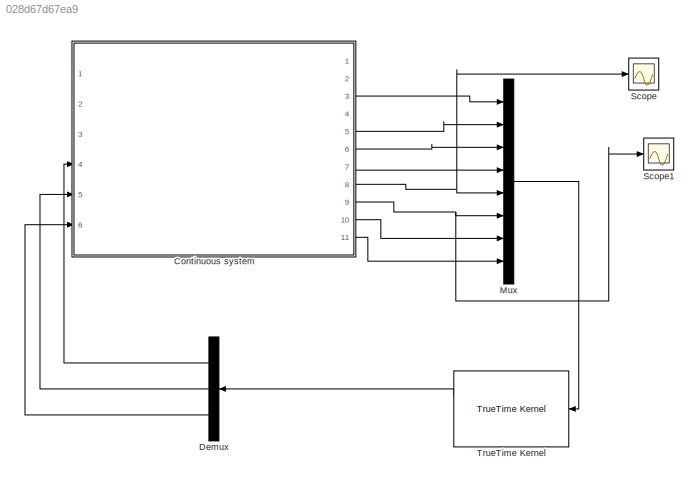
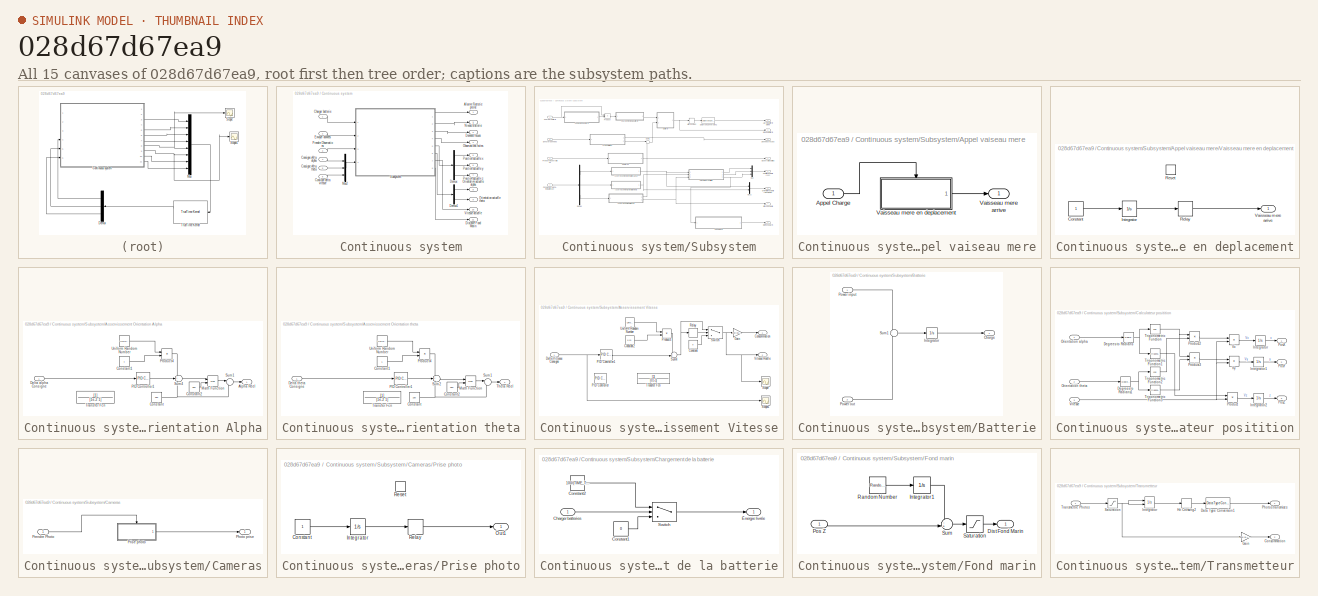
[diagram: thumbnail index - all 15 canvases of the model, root first then tree order]
MODEL slx_028d67d67ea9
KIND model
CONFIG AbsTol = auto
CONFIG EnableMultiTasking = off
CONFIG FixedStep = auto
CONFIG MaxStep = auto
CONFIG MinStep = auto
CONFIG RelTol = 1e-3
CONFIG SampleTimeConstraint = Unconstrained
CONFIG SolverName = VariableStepAuto
CONFIG StartTime = 0.0
CONFIG StopTime = 1
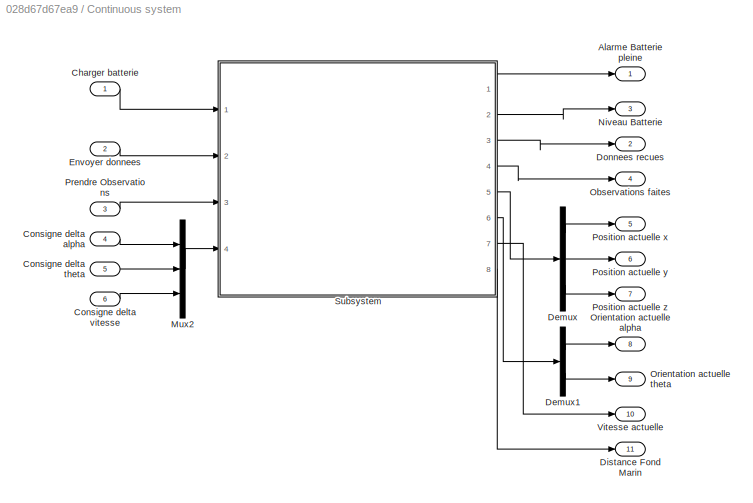
BLOCK [SubSystem] Continuous system
  Ports = [6, 11]
  RequestExecContextInheritance = off
BLOCK [Outport] Continuous system/Alarme Batterie pleine
  VectorParamsAs1DForOutWhenUnconnected = off
BLOCK [Inport] Continuous system/Charger batterie
BLOCK [Inport] Continuous system/Consigne delta alpha
  Port = 4
BLOCK [Inport] Continuous system/Consigne delta theta
  Port = 5
BLOCK [Inport] Continuous system/Consigne delta vitesse
  Port = 6
BLOCK [Demux] Continuous system/Demux
  Outputs = 3
  Ports = [1, 3]
BLOCK [Demux] Continuous system/Demux1
  Outputs = 2
  Ports = [1, 2]
BLOCK [Outport] Continuous system/Distance Fond Marin
  Port = 11
  VectorParamsAs1DForOutWhenUnconnected = off
BLOCK [Outport] Continuous system/Donnees recues
  Port = 2
  VectorParamsAs1DForOutWhenUnconnected = off
BLOCK [Inport] Continuous system/Envoyer donnees
  Port = 2
BLOCK [Mux] Continuous system/Mux2
  DisplayOption = bar
  Inputs = 3
  Ports = [3, 1]
BLOCK [Outport] Continuous system/Niveau Batterie
  Port = 3
  VectorParamsAs1DForOutWhenUnconnected = off
BLOCK [Outport] Continuous system/Observations faites
  Port = 4
  VectorParamsAs1DForOutWhenUnconnected = off
BLOCK [Outport] Continuous system/Orientation actuelle alpha
  Port = 8
  VectorParamsAs1DForOutWhenUnconnected = off
BLOCK [Outport] Continuous system/Orientation actuelle theta
  Port = 9
  VectorParamsAs1DForOutWhenUnconnected = off
BLOCK [Outport] Continuous system/Position actuelle x
  Port = 5
  VectorParamsAs1DForOutWhenUnconnected = off
BLOCK [Outport] Continuous system/Position actuelle y
  Port = 6
  VectorParamsAs1DForOutWhenUnconnected = off
BLOCK [Outport] Continuous system/Position actuelle z
  Port = 7
  VectorParamsAs1DForOutWhenUnconnected = off
BLOCK [Inport] Continuous system/Prendre Observations
  Port = 3
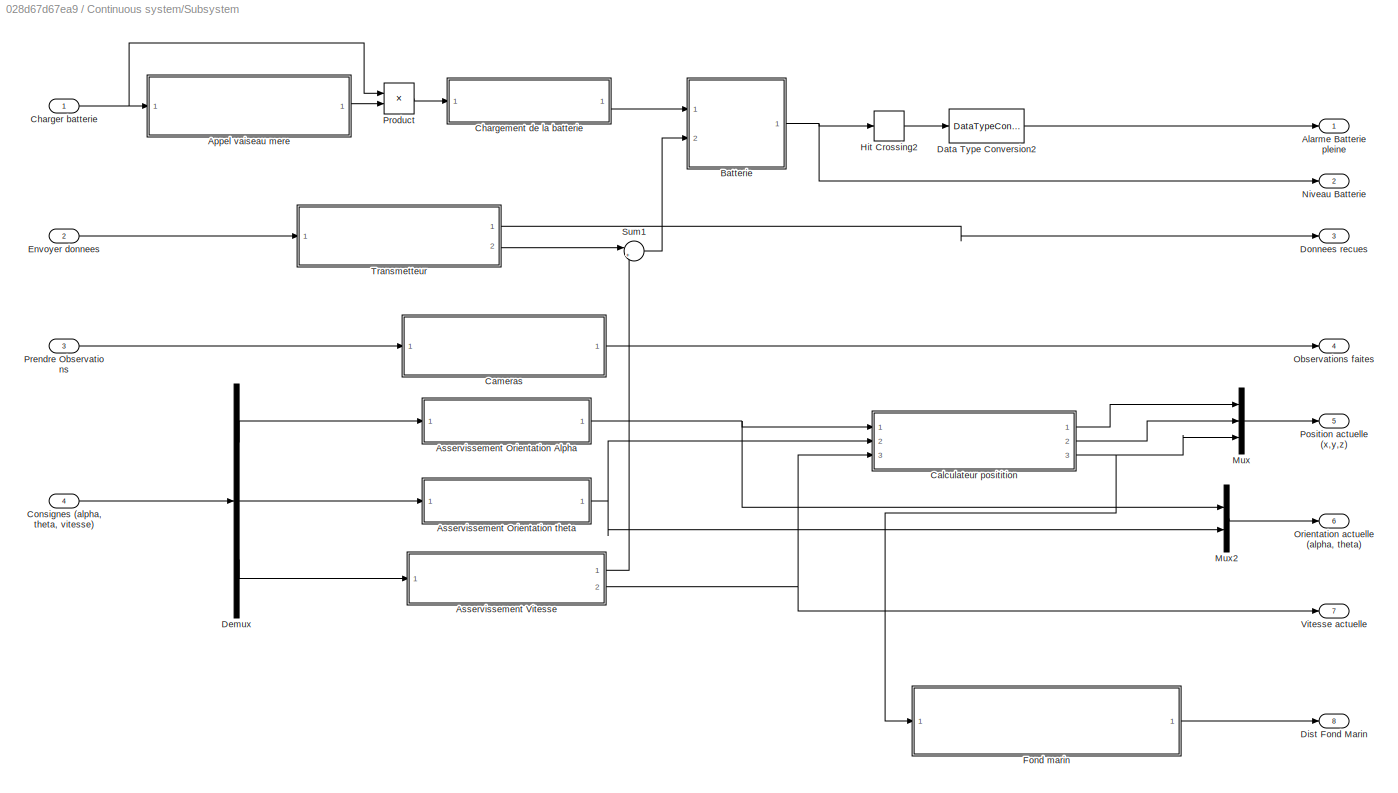
BLOCK [SubSystem] Continuous system/Subsystem
  Ports = [4, 8]
  RequestExecContextInheritance = off
BLOCK [Outport] Continuous system/Subsystem/Alarme Batterie pleine
  VectorParamsAs1DForOutWhenUnconnected = off
BLOCK [SubSystem] Continuous system/Subsystem/Appel vaiseau mere
  Ports = [1, 1]
  RequestExecContextInheritance = off
BLOCK [Inport] Continuous system/Subsystem/Appel vaiseau mere/Appel Charge
BLOCK [Outport] Continuous system/Subsystem/Appel vaiseau mere/Vaisseau mere arrive
  VectorParamsAs1DForOutWhenUnconnected = off
BLOCK [SubSystem] Continuous system/Subsystem/Appel vaiseau mere/Vaisseau mere en deplacement
  Ports = [0, 1, 0, 0, 0, 0, 0, 0, 1]
  RequestExecContextInheritance = off
  TreatAsAtomicUnit = on
BLOCK [Constant] Continuous system/Subsystem/Appel vaiseau mere/Vaisseau mere en deplacement/Constant
BLOCK [Integrator] Continuous system/Subsystem/Appel vaiseau mere/Vaisseau mere en deplacement/Integrator
  Ports = [1, 1]
BLOCK [Relay] Continuous system/Subsystem/Appel vaiseau mere/Vaisseau mere en deplacement/Relay
  OffSwitchValue = 0
  OnSwitchValue = TIME_APPEL_CHARGE_S/SIMU_ACCEL
BLOCK [ResetPort] Continuous system/Subsystem/Appel vaiseau mere/Vaisseau mere en deplacement/Reset
  DisableCoverage = on
BLOCK [Outport] Continuous system/Subsystem/Appel vaiseau mere/Vaisseau mere en deplacement/Vaisseau mere arrive
  VectorParamsAs1DForOutWhenUnconnected = off
BLOCK [SubSystem] Continuous system/Subsystem/Asservissement Orientation Alpha
  Ports = [1, 1]
  RequestExecContextInheritance = off
BLOCK [Outport] Continuous system/Subsystem/Asservissement Orientation Alpha/Alpha Réel
  VectorParamsAs1DForOutWhenUnconnected = off
BLOCK [Constant] Continuous system/Subsystem/Asservissement Orientation Alpha/Constant
  Value = 180
BLOCK [Constant] Continuous system/Subsystem/Asservissement Orientation Alpha/Constant1
BLOCK [Constant] Continuous system/Subsystem/Asservissement Orientation Alpha/Constant2
  Value = 360
BLOCK [Inport] Continuous system/Subsystem/Asservissement Orientation Alpha/Delta alpha Consigne
BLOCK [Math] Continuous system/Subsystem/Asservissement Orientation Alpha/Math Function
  Operator = mod
  Ports = [2, 1]
BLOCK [Reference] Continuous system/Subsystem/Asservissement Orientation Alpha/PID Controller1  REF=pid_lib/PID Controller
  Ports = [1, 1]
  SourceBlock = pid_lib/PID Controller
  SourceProductBaseCode = SL
  SourceType = PID 1dof
BLOCK [Product] Continuous system/Subsystem/Asservissement Orientation Alpha/Product4
  Ports = [2, 1]
BLOCK [Sum] Continuous system/Subsystem/Asservissement Orientation Alpha/Sum1
  Inputs = |+-
  Ports = [2, 1]
BLOCK [Sum] Continuous system/Subsystem/Asservissement Orientation Alpha/Sum4
  Inputs = +++
  Ports = [3, 1]
BLOCK [TransferFcn] Continuous system/Subsystem/Asservissement Orientation Alpha/Transfer Fcn
  Commented = on
  Denominator = [1e-2 1]
BLOCK [UniformRandomNumber] Continuous system/Subsystem/Asservissement Orientation Alpha/Uniform Random Number
  SampleTime = 0.1
BLOCK [SubSystem] Continuous system/Subsystem/Asservissement Orientation theta
  Ports = [1, 1]
  RequestExecContextInheritance = off
BLOCK [Constant] Continuous system/Subsystem/Asservissement Orientation theta/Constant
  Value = 180
BLOCK [Constant] Continuous system/Subsystem/Asservissement Orientation theta/Constant1
BLOCK [Constant] Continuous system/Subsystem/Asservissement Orientation theta/Constant2
  Value = 360
BLOCK [Inport] Continuous system/Subsystem/Asservissement Orientation theta/Delta theta Consigne
BLOCK [Math] Continuous system/Subsystem/Asservissement Orientation theta/Math Function
  Operator = mod
  Ports = [2, 1]
BLOCK [Reference] Continuous system/Subsystem/Asservissement Orientation theta/PID Controller1  REF=pid_lib/PID Controller
  Ports = [1, 1]
  SourceBlock = pid_lib/PID Controller
  SourceProductBaseCode = SL
  SourceType = PID 1dof
BLOCK [Product] Continuous system/Subsystem/Asservissement Orientation theta/Product4
  Ports = [2, 1]
BLOCK [Sum] Continuous system/Subsystem/Asservissement Orientation theta/Sum1
  Inputs = |+-
  Ports = [2, 1]
BLOCK [Sum] Continuous system/Subsystem/Asservissement Orientation theta/Sum2
  Inputs = +++
  Ports = [3, 1]
BLOCK [Outport] Continuous system/Subsystem/Asservissement Orientation theta/Theta Réel
  VectorParamsAs1DForOutWhenUnconnected = off
BLOCK [TransferFcn] Continuous system/Subsystem/Asservissement Orientation theta/Transfer Fcn
  Commented = on
  Denominator = [1e-2 1]
BLOCK [UniformRandomNumber] Continuous system/Subsystem/Asservissement Orientation theta/Uniform Random Number
  SampleTime = 0.1
BLOCK [SubSystem] Continuous system/Subsystem/Asservissement Vitesse
  Ports = [1, 2]
  RequestExecContextInheritance = off
BLOCK [Outport] Continuous system/Subsystem/Asservissement Vitesse/Consommation
  VectorParamsAs1DForOutWhenUnconnected = off
BLOCK [Constant] Continuous system/Subsystem/Asservissement Vitesse/Constant
  Value = 0
BLOCK [Constant] Continuous system/Subsystem/Asservissement Vitesse/Constant2
  Value = 0.01
BLOCK [Inport] Continuous system/Subsystem/Asservissement Vitesse/Delta Vittesse Consigne
BLOCK [Gain] Continuous system/Subsystem/Asservissement Vitesse/Gain
  Gain = 100/(BAT_AUTONOMY_S*VITESSE_MAX_MS)
BLOCK [Reference] Continuous system/Subsystem/Asservissement Vitesse/PID Controller  REF=pid_lib/PID Controller
  Commented = on
  Ports = [1, 1]
  SourceBlock = pid_lib/PID Controller
  SourceProductBaseCode = SL
  SourceType = PID 1dof
BLOCK [Reference] Continuous system/Subsystem/Asservissement Vitesse/PID Controller1  REF=pid_lib/PID Controller
  Ports = [1, 1]
  SourceBlock = pid_lib/PID Controller
  SourceProductBaseCode = SL
  SourceType = PID 1dof
BLOCK [Product] Continuous system/Subsystem/Asservissement Vitesse/Product4
  Ports = [2, 1]
BLOCK [Relay] Continuous system/Subsystem/Asservissement Vitesse/Relay
  OffSwitchValue = 0.01
  OnSwitchValue = 0.011
BLOCK [Scope] Continuous system/Subsystem/Asservissement Vitesse/Scope
  Floating = off
  NumInputPorts = 1
  Ports = [1]
  ScopeSpecificationString = Simulink.scopes.TimeScopeBlockCfg('CurrentConfiguration', extmgr.ConfigurationSet(extmgr.Configuration('Core','General UI',true),extmgr.Configuration('Core','Source UI',true),extmgr.Configuration('Sources','WiredSimulink',true,'DataLoggingVariableName','ScopeData1'),extmgr.Configuration('Visuals','Time Domain',true,'SerializedDisplays',{struct('MinYLimReal','-0.62689','MaxYLimReal','5.64199','YLab...<+1365ch>
BLOCK [Scope] Continuous system/Subsystem/Asservissement Vitesse/Scope1
  Floating = off
  NumInputPorts = 1
  Ports = [1]
  ScopeSpecificationString = Simulink.scopes.TimeScopeBlockCfg('CurrentConfiguration', extmgr.ConfigurationSet(extmgr.Configuration('Core','General UI',true),extmgr.Configuration('Core','Source UI',true),extmgr.Configuration('Sources','WiredSimulink',true,'DataLoggingVariableName','ScopeData2'),extmgr.Configuration('Visuals','Time Domain',true,'SerializedDisplays',{struct('MinYLimReal','-6.24875','MaxYLimReal','6.24986','YLab...<+1410ch>
BLOCK [Sum] Continuous system/Subsystem/Asservissement Vitesse/Sum4
  Inputs = ++|
  Ports = [2, 1]
BLOCK [Switch] Continuous system/Subsystem/Asservissement Vitesse/Switch
  Criteria = u2 > Threshold
  InputSameDT = off
  NameLocation = top
  SaturateOnIntegerOverflow = off
BLOCK [TransferFcn] Continuous system/Subsystem/Asservissement Vitesse/Transfer Fcn
  Commented = on
  Denominator = [0.5 1]
BLOCK [UniformRandomNumber] Continuous system/Subsystem/Asservissement Vitesse/Uniform Random Number
  SampleTime = 0.1
BLOCK [Outport] Continuous system/Subsystem/Asservissement Vitesse/Vitesse Réelle
  Port = 2
  VectorParamsAs1DForOutWhenUnconnected = off
BLOCK [SubSystem] Continuous system/Subsystem/Batterie
  Ports = [2, 1]
  RequestExecContextInheritance = off
BLOCK [Outport] Continuous system/Subsystem/Batterie/Charge
  VectorParamsAs1DForOutWhenUnconnected = off
BLOCK [Integrator] Continuous system/Subsystem/Batterie/Integrator
  InitialCondition = INIT_NIV_BAT
  LimitOutput = on
  LowerSaturationLimit = 0
  Ports = [1, 1]
  UpperSaturationLimit = 100
BLOCK [Inport] Continuous system/Subsystem/Batterie/Power input
BLOCK [Inport] Continuous system/Subsystem/Batterie/Power out
  Port = 2
BLOCK [Sum] Continuous system/Subsystem/Batterie/Sum1
  Inputs = +-
  Ports = [2, 1]
BLOCK [SubSystem] Continuous system/Subsystem/Calculateur positition
  Ports = [3, 3]
  RequestExecContextInheritance = off
BLOCK [Reference] Continuous system/Subsystem/Calculateur positition/Degrees to Radians  REF=simulink_extras/Transformations/Degrees to
Radians
  NameLocation = top
  Ports = [1, 1]
  SourceBlock = simulink_extras/Transformations/Degrees to\nRadians
  SourceProductBaseCode = SL
  SourceType = DegreesToRadians
BLOCK [Reference] Continuous system/Subsystem/Calculateur positition/Degrees to Radians1  REF=simulink_extras/Transformations/Degrees to
Radians
  NameLocation = top
  Ports = [1, 1]
  SourceBlock = simulink_extras/Transformations/Degrees to\nRadians
  SourceProductBaseCode = SL
  SourceType = DegreesToRadians
BLOCK [Integrator] Continuous system/Subsystem/Calculateur positition/Integrator
  Ports = [1, 1]
BLOCK [Integrator] Continuous system/Subsystem/Calculateur positition/Integrator1
  Ports = [1, 1]
BLOCK [Integrator] Continuous system/Subsystem/Calculateur positition/Integrator2
  LimitOutput = on
  Ports = [1, 1]
  UpperSaturationLimit = 0
BLOCK [Inport] Continuous system/Subsystem/Calculateur positition/Orientation alpha
BLOCK [Inport] Continuous system/Subsystem/Calculateur positition/Orientation theta
  Port = 2
BLOCK [Outport] Continuous system/Subsystem/Calculateur positition/PosX
  VectorParamsAs1DForOutWhenUnconnected = off
BLOCK [Outport] Continuous system/Subsystem/Calculateur positition/PosY
  Port = 2
  VectorParamsAs1DForOutWhenUnconnected = off
BLOCK [Outport] Continuous system/Subsystem/Calculateur positition/PosZ
  Port = 3
  VectorParamsAs1DForOutWhenUnconnected = off
BLOCK [Product] Continuous system/Subsystem/Calculateur positition/Product
  Ports = [2, 1]
BLOCK [Product] Continuous system/Subsystem/Calculateur positition/Product2
  Ports = [2, 1]
BLOCK [Product] Continuous system/Subsystem/Calculateur positition/Product3
  Ports = [2, 1]
BLOCK [Trigonometry] Continuous system/Subsystem/Calculateur positition/Trigonometric Function
  Operator = cos
  Ports = [1, 1]
BLOCK [Trigonometry] Continuous system/Subsystem/Calculateur positition/Trigonometric Function1
  Ports = [1, 1]
BLOCK [Trigonometry] Continuous system/Subsystem/Calculateur positition/Trigonometric Function2
  Operator = cos
  Ports = [1, 1]
BLOCK [Trigonometry] Continuous system/Subsystem/Calculateur positition/Trigonometric Function3
  Ports = [1, 1]
BLOCK [Inport] Continuous system/Subsystem/Calculateur positition/Vitesse
  Port = 3
BLOCK [Product] Continuous system/Subsystem/Calculateur positition/Vx
  Ports = [2, 1]
BLOCK [Product] Continuous system/Subsystem/Calculateur positition/Vy
  Ports = [2, 1]
BLOCK [SubSystem] Continuous system/Subsystem/Cameras
  Ports = [1, 1]
  RequestExecContextInheritance = off
BLOCK [Outport] Continuous system/Subsystem/Cameras/Photo prise
  VectorParamsAs1DForOutWhenUnconnected = off
BLOCK [Inport] Continuous system/Subsystem/Cameras/Prendre Photo
BLOCK [SubSystem] Continuous system/Subsystem/Cameras/Prise photo
  Ports = [0, 1, 0, 0, 0, 0, 0, 0, 1]
  RequestExecContextInheritance = off
  TreatAsAtomicUnit = on
BLOCK [Constant] Continuous system/Subsystem/Cameras/Prise photo/Constant
BLOCK [Integrator] Continuous system/Subsystem/Cameras/Prise photo/Integrator
  Ports = [1, 1]
BLOCK [Outport] Continuous system/Subsystem/Cameras/Prise photo/Out1
  VectorParamsAs1DForOutWhenUnconnected = off
BLOCK [Relay] Continuous system/Subsystem/Cameras/Prise photo/Relay
  OffSwitchValue = 0
  OnSwitchValue = TIME_PHOTO_S
BLOCK [ResetPort] Continuous system/Subsystem/Cameras/Prise photo/Reset
  DisableCoverage = on
BLOCK [SubSystem] Continuous system/Subsystem/Chargement de la batterie
  Ports = [1, 1]
  RequestExecContextInheritance = off
BLOCK [Inport] Continuous system/Subsystem/Chargement de la batterie/Charger batteries
BLOCK [Constant] Continuous system/Subsystem/Chargement de la batterie/Constant1
  Value = 0
BLOCK [Constant] Continuous system/Subsystem/Chargement de la batterie/Constant2
  Value = 100/(TIME_TO_CHARGE_S/SIMU_ACCEL)
BLOCK [Switch] Continuous system/Subsystem/Chargement de la batterie/Switch
  Criteria = u2 > Threshold
  InputSameDT = off
  NameLocation = top
  SaturateOnIntegerOverflow = off
BLOCK [Outport] Continuous system/Subsystem/Chargement de la batterie/Énergie livrée
  VectorParamsAs1DForOutWhenUnconnected = off
BLOCK [Inport] Continuous system/Subsystem/Charger batterie
BLOCK [Inport] Continuous system/Subsystem/Consignes (alpha, theta, vitesse)
  Port = 4
BLOCK [DataTypeConversion] Continuous system/Subsystem/Data Type Conversion2
  RndMeth = Floor
  SaturateOnIntegerOverflow = off
BLOCK [Demux] Continuous system/Subsystem/Demux
  Outputs = 3
  Ports = [1, 3]
BLOCK [Outport] Continuous system/Subsystem/Dist Fond Marin
  Port = 8
  VectorParamsAs1DForOutWhenUnconnected = off
BLOCK [Outport] Continuous system/Subsystem/Donnees recues
  Port = 3
  VectorParamsAs1DForOutWhenUnconnected = off
BLOCK [Inport] Continuous system/Subsystem/Envoyer donnees
  Port = 2
BLOCK [SubSystem] Continuous system/Subsystem/Fond marin
  Ports = [1, 1]
  RequestExecContextInheritance = off
BLOCK [Outport] Continuous system/Subsystem/Fond marin/Dist Fond Marin
BLOCK [Integrator] Continuous system/Subsystem/Fond marin/Integrator1
  InitialCondition = -1000
  LimitOutput = on
  LowerSaturationLimit = -1200
  Ports = [1, 1]
  UpperSaturationLimit = -800
BLOCK [Inport] Continuous system/Subsystem/Fond marin/Pos Z
BLOCK [RandomNumber] Continuous system/Subsystem/Fond marin/Random Number
  SampleTime = 10
  Variance = VARIANCE_INCL_FOND
BLOCK [Saturate] Continuous system/Subsystem/Fond marin/Saturation
  LowerLimit = 5
  UpperLimit = 1200
BLOCK [Sum] Continuous system/Subsystem/Fond marin/Sum
  Inputs = -+|
  Ports = [2, 1]
BLOCK [HitCross] Continuous system/Subsystem/Hit Crossing2
  HitCrossingDirection = rising
  HitCrossingOffset = 99.99
  Ports = [1, 1]
BLOCK [Mux] Continuous system/Subsystem/Mux
  DisplayOption = bar
  Inputs = 3
  Ports = [3, 1]
BLOCK [Mux] Continuous system/Subsystem/Mux2
  DisplayOption = bar
  Inputs = 2
  Ports = [2, 1]
BLOCK [Outport] Continuous system/Subsystem/Niveau Batterie
  Port = 2
  VectorParamsAs1DForOutWhenUnconnected = off
BLOCK [Outport] Continuous system/Subsystem/Observations faites
  Port = 4
  VectorParamsAs1DForOutWhenUnconnected = off
BLOCK [Outport] Continuous system/Subsystem/Orientation actuelle (alpha, theta)
  Port = 6
  VectorParamsAs1DForOutWhenUnconnected = off
BLOCK [Outport] Continuous system/Subsystem/Position actuelle (x,y,z)
  Port = 5
  VectorParamsAs1DForOutWhenUnconnected = off
BLOCK [Inport] Continuous system/Subsystem/Prendre Observations
  Port = 3
BLOCK [Product] Continuous system/Subsystem/Product
  Ports = [2, 1]
BLOCK [Sum] Continuous system/Subsystem/Sum1
  Inputs = |++
  Ports = [2, 1]
BLOCK [SubSystem] Continuous system/Subsystem/Transmetteur
  Ports = [1, 2]
  RequestExecContextInheritance = off
BLOCK [Outport] Continuous system/Subsystem/Transmetteur/Consommation
  Port = 2
  VectorParamsAs1DForOutWhenUnconnected = off
BLOCK [DataTypeConversion] Continuous system/Subsystem/Transmetteur/Data Type Conversion1
  RndMeth = Floor
  SaturateOnIntegerOverflow = off
BLOCK [Gain] Continuous system/Subsystem/Transmetteur/Gain
  Gain = 100/(BAT_AUTONOMY_S)
BLOCK [HitCross] Continuous system/Subsystem/Transmetteur/Hit Crossing2
  HitCrossingDirection = rising
  HitCrossingOffset = TIME_TRANSM_S
  Ports = [1, 1]
BLOCK [Integrator] Continuous system/Subsystem/Transmetteur/Integrator
  ExternalReset = rising
  Ports = [2, 1]
BLOCK [Outport] Continuous system/Subsystem/Transmetteur/Photos transmises
  VectorParamsAs1DForOutWhenUnconnected = off
BLOCK [Saturate] Continuous system/Subsystem/Transmetteur/Saturation
  LowerLimit = 0
  UpperLimit = 1
BLOCK [Inport] Continuous system/Subsystem/Transmetteur/Transmettre Photos
BLOCK [Outport] Continuous system/Subsystem/Vitesse actuelle
  Port = 7
  VectorParamsAs1DForOutWhenUnconnected = off
BLOCK [Outport] Continuous system/Vitesse actuelle
  Port = 10
  VectorParamsAs1DForOutWhenUnconnected = off
BLOCK [Demux] Demux
  Outputs = 3
  Ports = [1, 3]
BLOCK [Mux] Mux
  DisplayOption = bar
  Inputs = 8
  Ports = [8, 1]
BLOCK [Scope] Scope
  Floating = off
  NumInputPorts = 1
  Ports = [1]
  ScopeSpecificationString = Simulink.scopes.TimeScopeBlockCfg('CurrentConfiguration', extmgr.ConfigurationSet(extmgr.Configuration('Core','General UI',true),extmgr.Configuration('Core','Source UI',true),extmgr.Configuration('Sources','WiredSimulink',true,'DataLoggingVariableName','ScopeData1'),extmgr.Configuration('Visuals','Time Domain',true,'SerializedDisplays',{struct('MinYLimReal','-1.15589','MaxYLimReal','1.09442','YLab...<+1405ch>
BLOCK [Scope] Scope1
  Floating = off
  NumInputPorts = 1
  Ports = [1]
  ScopeSpecificationString = Simulink.scopes.TimeScopeBlockCfg('CurrentConfiguration', extmgr.ConfigurationSet(extmgr.Configuration('Core','General UI',true),extmgr.Configuration('Core','Source UI',true),extmgr.Configuration('Sources','WiredSimulink',true,'DataLoggingVariableName','ScopeData2'),extmgr.Configuration('Visuals','Time Domain',true,'SerializedDisplays',{struct('MinYLimReal','-1.15589','MaxYLimReal','1.09442','YLab...<+1378ch>
BLOCK [Reference] TrueTime Kernel  REF=truetime/TrueTime Kernel  (lib defined in slx_0362a698a4ec)
  Ports = [1, 2]
  SourceBlock = truetime/TrueTime Kernel
LINE Continuous system/Charger batterie:1 -> Continuous system/Subsystem:1
LINE Continuous system/Consigne delta alpha:1 -> Continuous system/Mux2:1
LINE Continuous system/Consigne delta theta:1 -> Continuous system/Mux2:2
LINE Continuous system/Consigne delta vitesse:1 -> Continuous system/Mux2:3
LINE Continuous system/Demux1:1 -> Continuous system/Orientation actuelle alpha:1
LINE Continuous system/Demux1:2 -> Continuous system/Orientation actuelle theta:1
LINE Continuous system/Demux:1 -> Continuous system/Position actuelle x:1
LINE Continuous system/Demux:2 -> Continuous system/Position actuelle y:1
LINE Continuous system/Demux:3 -> Continuous system/Position actuelle z:1
LINE Continuous system/Envoyer donnees:1 -> Continuous system/Subsystem:2
LINE Continuous system/Mux2:1 -> Continuous system/Subsystem:4
LINE Continuous system/Prendre Observations:1 -> Continuous system/Subsystem:3
LINE Continuous system/Subsystem/Appel vaiseau mere/Appel Charge:1 -> Continuous system/Subsystem/Appel vaiseau mere/Vaisseau mere en deplacement:Reset
LINE Continuous system/Subsystem/Appel vaiseau mere/Vaisseau mere en deplacement/Constant:1 -> Continuous system/Subsystem/Appel vaiseau mere/Vaisseau mere en deplacement/Integrator:1
LINE Continuous system/Subsystem/Appel vaiseau mere/Vaisseau mere en deplacement/Integrator:1 -> Continuous system/Subsystem/Appel vaiseau mere/Vaisseau mere en deplacement/Relay:1
LINE Continuous system/Subsystem/Appel vaiseau mere/Vaisseau mere en deplacement/Relay:1 -> Continuous system/Subsystem/Appel vaiseau mere/Vaisseau mere en deplacement/Vaisseau mere arrive:1
LINE Continuous system/Subsystem/Appel vaiseau mere/Vaisseau mere en deplacement:1 -> Continuous system/Subsystem/Appel vaiseau mere/Vaisseau mere arrive:1
LINE Continuous system/Subsystem/Appel vaiseau mere:1 -> Continuous system/Subsystem/Product:2
LINE Continuous system/Subsystem/Asservissement Orientation Alpha/Constant1:1 -> Continuous system/Subsystem/Asservissement Orientation Alpha/Product4:2
LINE Continuous system/Subsystem/Asservissement Orientation Alpha/Constant2:1 -> Continuous system/Subsystem/Asservissement Orientation Alpha/Math Function:2
NET Continuous system/Subsystem/Asservissement Orientation Alpha/Constant:1 -> Continuous system/Subsystem/Asservissement Orientation Alpha/Sum1:2, Continuous system/Subsystem/Asservissement Orientation Alpha/Sum4:3
LINE Continuous system/Subsystem/Asservissement Orientation Alpha/Delta alpha Consigne:1 -> Continuous system/Subsystem/Asservissement Orientation Alpha/PID Controller1:1
LINE Continuous system/Subsystem/Asservissement Orientation Alpha/Math Function:1 -> Continuous system/Subsystem/Asservissement Orientation Alpha/Sum1:1
LINE Continuous system/Subsystem/Asservissement Orientation Alpha/PID Controller1:1 -> Continuous system/Subsystem/Asservissement Orientation Alpha/Sum4:2
LINE Continuous system/Subsystem/Asservissement Orientation Alpha/Product4:1 -> Continuous system/Subsystem/Asservissement Orientation Alpha/Sum4:1
LINE Continuous system/Subsystem/Asservissement Orientation Alpha/Sum1:1 -> Continuous system/Subsystem/Asservissement Orientation Alpha/Alpha Réel:1
LINE Continuous system/Subsystem/Asservissement Orientation Alpha/Sum4:1 -> Continuous system/Subsystem/Asservissement Orientation Alpha/Math Function:1
LINE Continuous system/Subsystem/Asservissement Orientation Alpha/Uniform Random Number:1 -> Continuous system/Subsystem/Asservissement Orientation Alpha/Product4:1
NET Continuous system/Subsystem/Asservissement Orientation Alpha:1 -> Continuous system/Subsystem/Calculateur positition:1, Continuous system/Subsystem/Mux2:1
LINE Continuous system/Subsystem/Asservissement Orientation theta/Constant1:1 -> Continuous system/Subsystem/Asservissement Orientation theta/Product4:2
LINE Continuous system/Subsystem/Asservissement Orientation theta/Constant2:1 -> Continuous system/Subsystem/Asservissement Orientation theta/Math Function:2
NET Continuous system/Subsystem/Asservissement Orientation theta/Constant:1 -> Continuous system/Subsystem/Asservissement Orientation theta/Sum1:2, Continuous system/Subsystem/Asservissement Orientation theta/Sum2:3
LINE Continuous system/Subsystem/Asservissement Orientation theta/Delta theta Consigne:1 -> Continuous system/Subsystem/Asservissement Orientation theta/PID Controller1:1
LINE Continuous system/Subsystem/Asservissement Orientation theta/Math Function:1 -> Continuous system/Subsystem/Asservissement Orientation theta/Sum1:1
LINE Continuous system/Subsystem/Asservissement Orientation theta/PID Controller1:1 -> Continuous system/Subsystem/Asservissement Orientation theta/Sum2:2
LINE Continuous system/Subsystem/Asservissement Orientation theta/Product4:1 -> Continuous system/Subsystem/Asservissement Orientation theta/Sum2:1
LINE Continuous system/Subsystem/Asservissement Orientation theta/Sum1:1 -> Continuous system/Subsystem/Asservissement Orientation theta/Theta Réel:1
LINE Continuous system/Subsystem/Asservissement Orientation theta/Sum2:1 -> Continuous system/Subsystem/Asservissement Orientation theta/Math Function:1
LINE Continuous system/Subsystem/Asservissement Orientation theta/Uniform Random Number:1 -> Continuous system/Subsystem/Asservissement Orientation theta/Product4:1
NET Continuous system/Subsystem/Asservissement Orientation theta:1 -> Continuous system/Subsystem/Calculateur positition:2, Continuous system/Subsystem/Mux2:2
LINE Continuous system/Subsystem/Asservissement Vitesse/Constant2:1 -> Continuous system/Subsystem/Asservissement Vitesse/Product4:2
LINE Continuous system/Subsystem/Asservissement Vitesse/Constant:1 -> Continuous system/Subsystem/Asservissement Vitesse/Switch:3
NET Continuous system/Subsystem/Asservissement Vitesse/Delta Vittesse Consigne:1 -> Continuous system/Subsystem/Asservissement Vitesse/PID Controller1:1, Continuous system/Subsystem/Asservissement Vitesse/Scope1:1
LINE Continuous system/Subsystem/Asservissement Vitesse/Gain:1 -> Continuous system/Subsystem/Asservissement Vitesse/Consommation:1
LINE Continuous system/Subsystem/Asservissement Vitesse/PID Controller1:1 -> Continuous system/Subsystem/Asservissement Vitesse/Sum4:2
LINE Continuous system/Subsystem/Asservissement Vitesse/Product4:1 -> Continuous system/Subsystem/Asservissement Vitesse/Sum4:1
LINE Continuous system/Subsystem/Asservissement Vitesse/Relay:1 -> Continuous system/Subsystem/Asservissement Vitesse/Switch:2
NET Continuous system/Subsystem/Asservissement Vitesse/Sum4:1 -> Continuous system/Subsystem/Asservissement Vitesse/Relay:1, Continuous system/Subsystem/Asservissement Vitesse/Switch:1
NET Continuous system/Subsystem/Asservissement Vitesse/Switch:1 -> Continuous system/Subsystem/Asservissement Vitesse/Gain:1, Continuous system/Subsystem/Asservissement Vitesse/Scope:1, Continuous system/Subsystem/Asservissement Vitesse/Vitesse Réelle:1
LINE Continuous system/Subsystem/Asservissement Vitesse/Uniform Random Number:1 -> Continuous system/Subsystem/Asservissement Vitesse/Product4:1
LINE Continuous system/Subsystem/Asservissement Vitesse:1 -> Continuous system/Subsystem/Sum1:2
NET Continuous system/Subsystem/Asservissement Vitesse:2 -> Continuous system/Subsystem/Calculateur positition:3, Continuous system/Subsystem/Vitesse actuelle:1
LINE Continuous system/Subsystem/Batterie/Integrator:1 -> Continuous system/Subsystem/Batterie/Charge:1
LINE Continuous system/Subsystem/Batterie/Power input:1 -> Continuous system/Subsystem/Batterie/Sum1:1
LINE Continuous system/Subsystem/Batterie/Power out:1 -> Continuous system/Subsystem/Batterie/Sum1:2
LINE Continuous system/Subsystem/Batterie/Sum1:1 -> Continuous system/Subsystem/Batterie/Integrator:1
NET Continuous system/Subsystem/Batterie:1 -> Continuous system/Subsystem/Hit Crossing2:1, Continuous system/Subsystem/Niveau Batterie:1
NET Continuous system/Subsystem/Calculateur positition/Degrees to Radians1:1 -> Continuous system/Subsystem/Calculateur positition/Trigonometric Function2:1, Continuous system/Subsystem/Calculateur positition/Trigonometric Function3:1
NET Continuous system/Subsystem/Calculateur positition/Degrees to Radians:1 -> Continuous system/Subsystem/Calculateur positition/Trigonometric Function1:1, Continuous system/Subsystem/Calculateur positition/Trigonometric Function:1
LINE Continuous system/Subsystem/Calculateur positition/Integrator1:1 -> Continuous system/Subsystem/Calculateur positition/PosY:1
LINE Continuous system/Subsystem/Calculateur positition/Integrator2:1 -> Continuous system/Subsystem/Calculateur positition/PosZ:1
LINE Continuous system/Subsystem/Calculateur positition/Integrator:1 -> Continuous system/Subsystem/Calculateur positition/PosX:1
LINE Continuous system/Subsystem/Calculateur positition/Orientation alpha:1 -> Continuous system/Subsystem/Calculateur positition/Degrees to Radians:1
LINE Continuous system/Subsystem/Calculateur positition/Orientation theta:1 -> Continuous system/Subsystem/Calculateur positition/Degrees to Radians1:1
LINE Continuous system/Subsystem/Calculateur positition/Product2:1 -> Continuous system/Subsystem/Calculateur positition/Vx:1
LINE Continuous system/Subsystem/Calculateur positition/Product3:1 -> Continuous system/Subsystem/Calculateur positition/Vy:1
LINE Continuous system/Subsystem/Calculateur positition/Product:1 -> Continuous system/Subsystem/Calculateur positition/Integrator2:1
LINE Continuous system/Subsystem/Calculateur positition/Trigonometric Function1:1 -> Continuous system/Subsystem/Calculateur positition/Product:1
LINE Continuous system/Subsystem/Calculateur positition/Trigonometric Function2:1 -> Continuous system/Subsystem/Calculateur positition/Product2:2
LINE Continuous system/Subsystem/Calculateur positition/Trigonometric Function3:1 -> Continuous system/Subsystem/Calculateur positition/Product3:2
NET Continuous system/Subsystem/Calculateur positition/Trigonometric Function:1 -> Continuous system/Subsystem/Calculateur positition/Product2:1, Continuous system/Subsystem/Calculateur positition/Product3:1
NET Continuous system/Subsystem/Calculateur positition/Vitesse:1 -> Continuous system/Subsystem/Calculateur positition/Product:2, Continuous system/Subsystem/Calculateur positition/Vx:2, Continuous system/Subsystem/Calculateur positition/Vy:2
LINE Continuous system/Subsystem/Calculateur positition/Vx:1 -> Continuous system/Subsystem/Calculateur positition/Integrator:1
LINE Continuous system/Subsystem/Calculateur positition/Vy:1 -> Continuous system/Subsystem/Calculateur positition/Integrator1:1
LINE Continuous system/Subsystem/Calculateur positition:1 -> Continuous system/Subsystem/Mux:1
LINE Continuous system/Subsystem/Calculateur positition:2 -> Continuous system/Subsystem/Mux:2
NET Continuous system/Subsystem/Calculateur positition:3 -> Continuous system/Subsystem/Fond marin:1, Continuous system/Subsystem/Mux:3
LINE Continuous system/Subsystem/Cameras/Prendre Photo:1 -> Continuous system/Subsystem/Cameras/Prise photo:Reset
LINE Continuous system/Subsystem/Cameras/Prise photo/Constant:1 -> Continuous system/Subsystem/Cameras/Prise photo/Integrator:1
LINE Continuous system/Subsystem/Cameras/Prise photo/Integrator:1 -> Continuous system/Subsystem/Cameras/Prise photo/Relay:1
LINE Continuous system/Subsystem/Cameras/Prise photo/Relay:1 -> Continuous system/Subsystem/Cameras/Prise photo/Out1:1
LINE Continuous system/Subsystem/Cameras/Prise photo:1 -> Continuous system/Subsystem/Cameras/Photo prise:1
LINE Continuous system/Subsystem/Cameras:1 -> Continuous system/Subsystem/Observations faites:1
LINE Continuous system/Subsystem/Chargement de la batterie/Charger batteries:1 -> Continuous system/Subsystem/Chargement de la batterie/Switch:2
LINE Continuous system/Subsystem/Chargement de la batterie/Constant1:1 -> Continuous system/Subsystem/Chargement de la batterie/Switch:3
LINE Continuous system/Subsystem/Chargement de la batterie/Constant2:1 -> Continuous system/Subsystem/Chargement de la batterie/Switch:1
LINE Continuous system/Subsystem/Chargement de la batterie/Switch:1 -> Continuous system/Subsystem/Chargement de la batterie/Énergie livrée:1
LINE Continuous system/Subsystem/Chargement de la batterie:1 -> Continuous system/Subsystem/Batterie:1
NET Continuous system/Subsystem/Charger batterie:1 -> Continuous system/Subsystem/Appel vaiseau mere:1, Continuous system/Subsystem/Product:1
LINE Continuous system/Subsystem/Consignes (alpha, theta, vitesse):1 -> Continuous system/Subsystem/Demux:1
LINE Continuous system/Subsystem/Data Type Conversion2:1 -> Continuous system/Subsystem/Alarme Batterie pleine:1
LINE Continuous system/Subsystem/Demux:1 -> Continuous system/Subsystem/Asservissement Orientation Alpha:1
LINE Continuous system/Subsystem/Demux:2 -> Continuous system/Subsystem/Asservissement Orientation theta:1
LINE Continuous system/Subsystem/Demux:3 -> Continuous system/Subsystem/Asservissement Vitesse:1
LINE Continuous system/Subsystem/Envoyer donnees:1 -> Continuous system/Subsystem/Transmetteur:1
LINE Continuous system/Subsystem/Fond marin/Integrator1:1 -> Continuous system/Subsystem/Fond marin/Sum:1
LINE Continuous system/Subsystem/Fond marin/Pos Z:1 -> Continuous system/Subsystem/Fond marin/Sum:2
LINE Continuous system/Subsystem/Fond marin/Random Number:1 -> Continuous system/Subsystem/Fond marin/Integrator1:1
LINE Continuous system/Subsystem/Fond marin/Saturation:1 -> Continuous system/Subsystem/Fond marin/Dist Fond Marin:1
LINE Continuous system/Subsystem/Fond marin/Sum:1 -> Continuous system/Subsystem/Fond marin/Saturation:1
LINE Continuous system/Subsystem/Fond marin:1 -> Continuous system/Subsystem/Dist Fond Marin:1
LINE Continuous system/Subsystem/Hit Crossing2:1 -> Continuous system/Subsystem/Data Type Conversion2:1
LINE Continuous system/Subsystem/Mux2:1 -> Continuous system/Subsystem/Orientation actuelle (alpha, theta):1
LINE Continuous system/Subsystem/Mux:1 -> Continuous system/Subsystem/Position actuelle (x,y,z):1
LINE Continuous system/Subsystem/Prendre Observations:1 -> Continuous system/Subsystem/Cameras:1
LINE Continuous system/Subsystem/Product:1 -> Continuous system/Subsystem/Chargement de la batterie:1
LINE Continuous system/Subsystem/Sum1:1 -> Continuous system/Subsystem/Batterie:2
LINE Continuous system/Subsystem/Transmetteur/Data Type Conversion1:1 -> Continuous system/Subsystem/Transmetteur/Photos transmises:1
LINE Continuous system/Subsystem/Transmetteur/Gain:1 -> Continuous system/Subsystem/Transmetteur/Consommation:1
LINE Continuous system/Subsystem/Transmetteur/Hit Crossing2:1 -> Continuous system/Subsystem/Transmetteur/Data Type Conversion1:1
LINE Continuous system/Subsystem/Transmetteur/Integrator:1 -> Continuous system/Subsystem/Transmetteur/Hit Crossing2:1
NET Continuous system/Subsystem/Transmetteur/Saturation:1 -> Continuous system/Subsystem/Transmetteur/Gain:1, Continuous system/Subsystem/Transmetteur/Integrator:1, Continuous system/Subsystem/Transmetteur/Integrator:2
LINE Continuous system/Subsystem/Transmetteur/Transmettre Photos:1 -> Continuous system/Subsystem/Transmetteur/Saturation:1
LINE Continuous system/Subsystem/Transmetteur:1 -> Continuous system/Subsystem/Donnees recues:1
LINE Continuous system/Subsystem/Transmetteur:2 -> Continuous system/Subsystem/Sum1:1
LINE Continuous system/Subsystem:1 -> Continuous system/Alarme Batterie pleine:1
LINE Continuous system/Subsystem:2 -> Continuous system/Niveau Batterie:1
LINE Continuous system/Subsystem:3 -> Continuous system/Donnees recues:1
LINE Continuous system/Subsystem:4 -> Continuous system/Observations faites:1
LINE Continuous system/Subsystem:5 -> Continuous system/Demux:1
LINE Continuous system/Subsystem:6 -> Continuous system/Demux1:1
LINE Continuous system/Subsystem:7 -> Continuous system/Vitesse actuelle:1
LINE Continuous system/Subsystem:8 -> Continuous system/Distance Fond Marin:1
LINE Continuous system:10 -> Mux:7
LINE Continuous system:11 -> Mux:8
LINE Continuous system:3 -> Mux:1
LINE Continuous system:5 -> Mux:2
LINE Continuous system:6 -> Mux:3
LINE Continuous system:7 -> Mux:4
NET Continuous system:8 -> Mux:5, Scope:1
NET Continuous system:9 -> Mux:6, Scope1:1
LINE Demux:1 -> Continuous system:4
LINE Demux:2 -> Continuous system:5
LINE Demux:3 -> Continuous system:6
LINE Mux:1 -> TrueTime Kernel:1
LINE TrueTime Kernel:1 -> Demux:1
note: NET lines group one-source signal fan-out (src -> all destinations, sorted); 1:1 wires keep LINE
